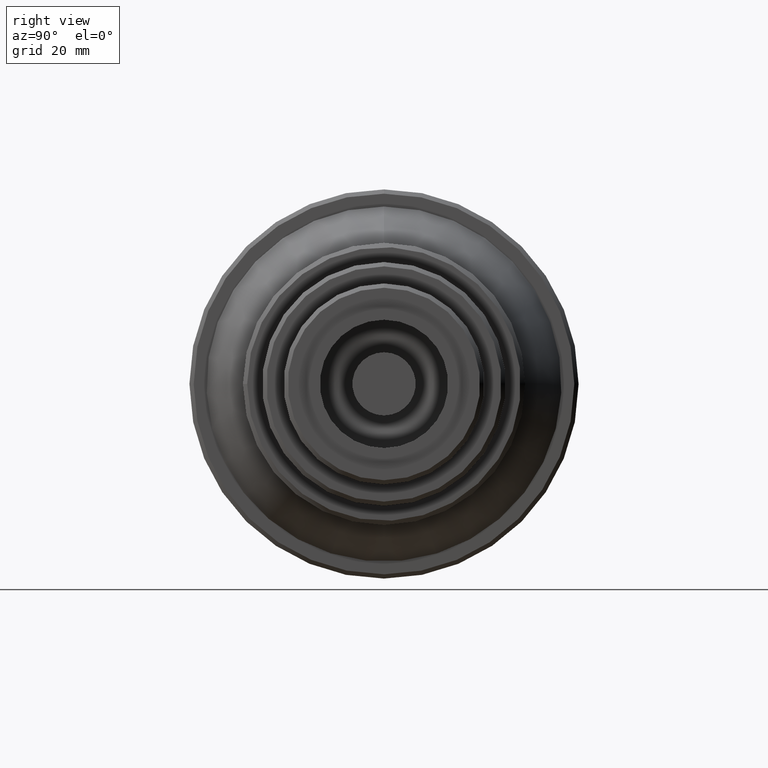
[diagram: clean part render]
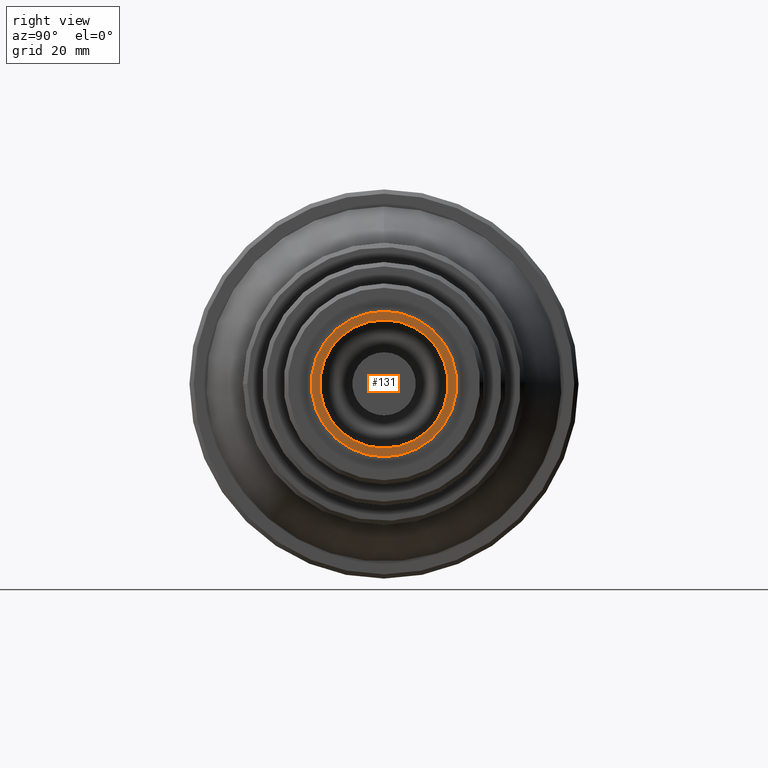
[diagram: same view with one face highlighted and labeled with its STEP entity id]
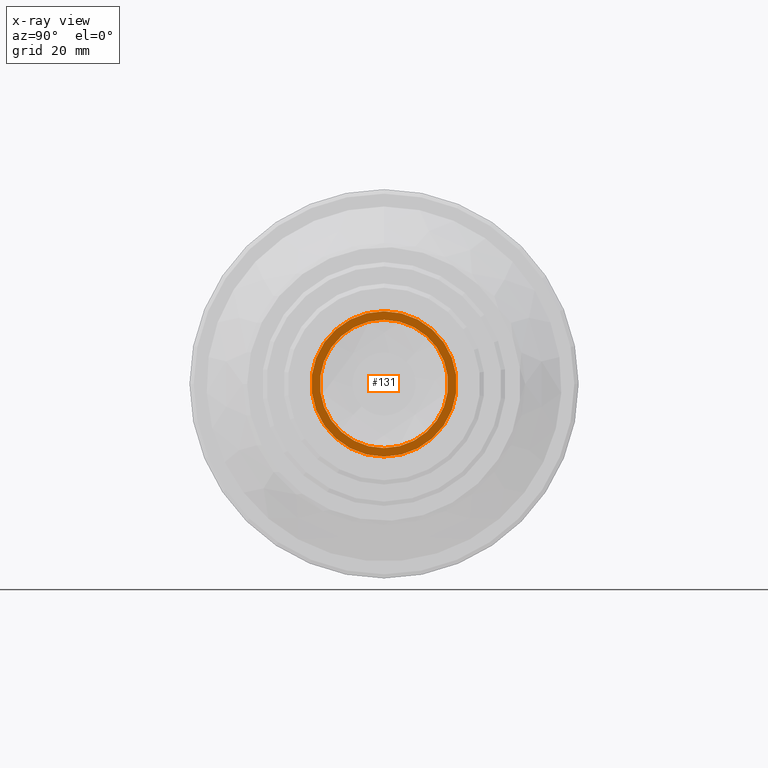
[diagram: x-ray of the same camera — body ghosted, the highlighted face saturated]
A machine part, right view. The second image highlights one B-rep face of the part: STEP entity #131.
The next image is the same camera in x-ray: the body ghosted, the highlighted face saturated — about 0% of this face is hidden behind the body in this view.
In plain terms, the highlighted planar face has unit normal (-1, 0, 0).
Its self-contained STEP definition (entity closure, byte-faithful):
#77 = DIRECTION ( 'NONE',  ( 0.000000000000000000, 0.000000000000000000, 1.000000000000000000 ) ) ;
#81 = PLANE ( 'NONE',  #505 ) ;
#104 = VERTEX_POINT ( 'NONE', #647 ) ;
#121 = EDGE_LOOP ( 'NONE', ( #780 ) ) ;
#131 = ADVANCED_FACE ( 'NONE', ( #468, #341 ), #81, .F. ) ;
#132 = CARTESIAN_POINT ( 'NONE',  ( 100.4999999999999289, 0.000000000000000000, 0.000000000000000000 ) ) ;
#215 = DIRECTION ( 'NONE',  ( 1.000000000000000000, 0.000000000000000000, 0.000000000000000000 ) ) ;
#231 = VERTEX_POINT ( 'NONE', #293 ) ;
#264 = CIRCLE ( 'NONE', #417, 17.00000000000000000 ) ;
#293 = CARTESIAN_POINT ( 'NONE',  ( 100.4999999999999289, 0.000000000000000000, 15.00000000000000000 ) ) ;
#316 = EDGE_CURVE ( 'NONE', #104, #104, #264, .T. ) ;
#317 = CIRCLE ( 'NONE', #623, 15.00000000000000000 ) ;
#341 = FACE_OUTER_BOUND ( 'NONE', #121, .T. ) ;
#409 = EDGE_LOOP ( 'NONE', ( #744 ) ) ;
#417 = AXIS2_PLACEMENT_3D ( 'NONE', #132, #546, #854 ) ;
#468 = FACE_BOUND ( 'NONE', #409, .T. ) ;
#505 = AXIS2_PLACEMENT_3D ( 'NONE', #855, #669, #77 ) ;
#546 = DIRECTION ( 'NONE',  ( -1.000000000000000000, -0.000000000000000000, -0.000000000000000000 ) ) ;
#622 = CARTESIAN_POINT ( 'NONE',  ( 100.4999999999999289, 0.000000000000000000, 0.000000000000000000 ) ) ;
#623 = AXIS2_PLACEMENT_3D ( 'NONE', #622, #215, #747 ) ;
#647 = CARTESIAN_POINT ( 'NONE',  ( 100.4999999999999289, 0.000000000000000000, 17.00000000000000000 ) ) ;
#669 = DIRECTION ( 'NONE',  ( -1.000000000000000000, 0.000000000000000000, 0.000000000000000000 ) ) ;
#744 = ORIENTED_EDGE ( 'NONE', *, *, #849, .F. ) ;
#747 = DIRECTION ( 'NONE',  ( 0.000000000000000000, 0.000000000000000000, 1.000000000000000000 ) ) ;
#780 = ORIENTED_EDGE ( 'NONE', *, *, #316, .F. ) ;
#849 = EDGE_CURVE ( 'NONE', #231, #231, #317, .T. ) ;
#854 = DIRECTION ( 'NONE',  ( 0.000000000000000000, 0.000000000000000000, 1.000000000000000000 ) ) ;
#855 = CARTESIAN_POINT ( 'NONE',  ( 100.4999999999999289, 17.00000000000000000, 0.000000000000000000 ) ) ;